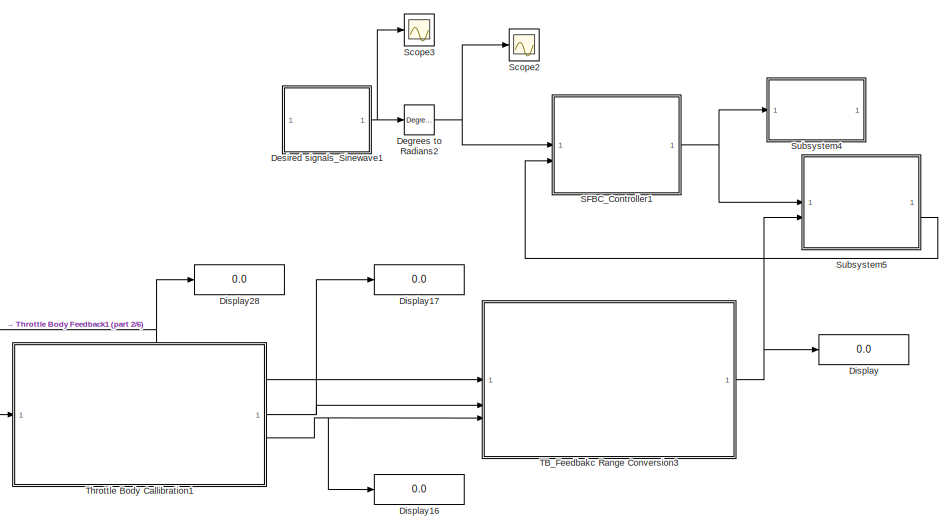
[diagram: root canvas - part 1/6, top center region]
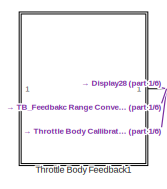
[diagram: root canvas - part 2/6, top left region]
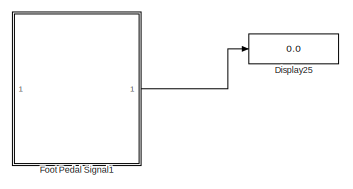
[diagram: root canvas - part 3/6, top left region]
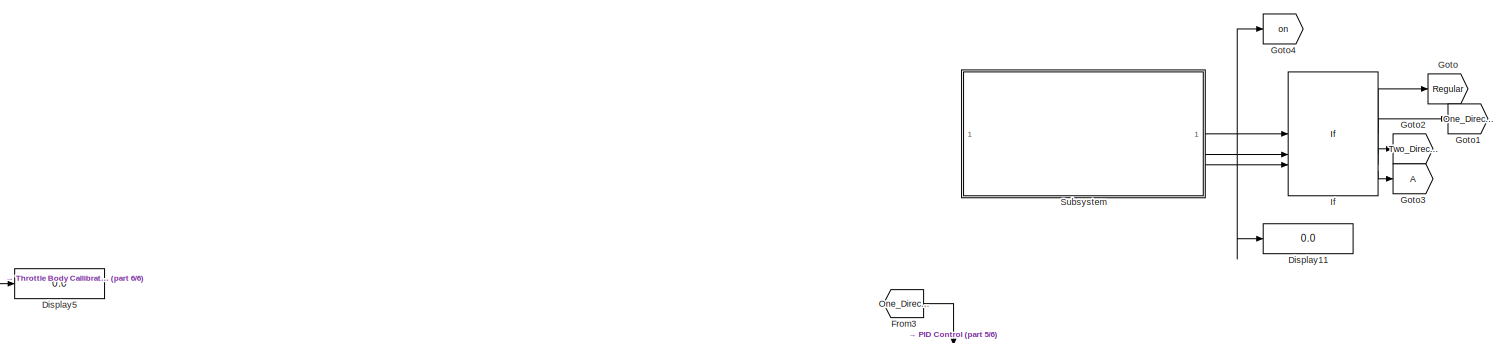
[diagram: root canvas - part 4/6, central region]
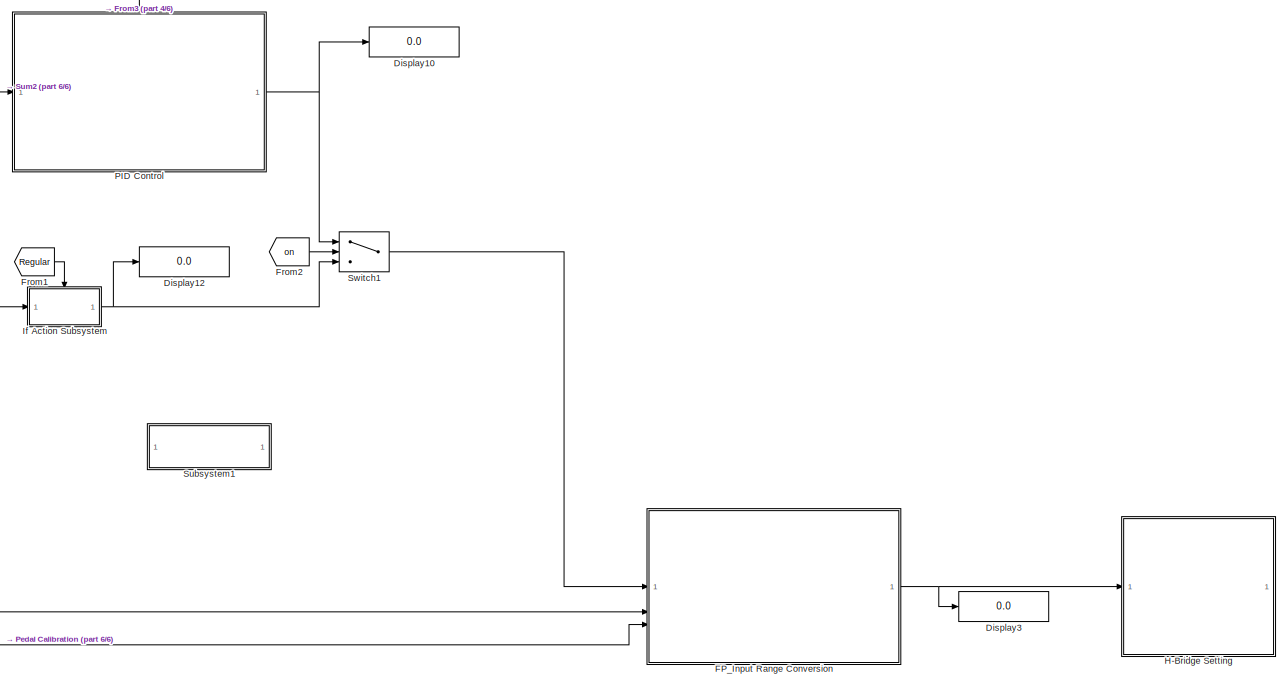
[diagram: root canvas - part 5/6, bottom right region]
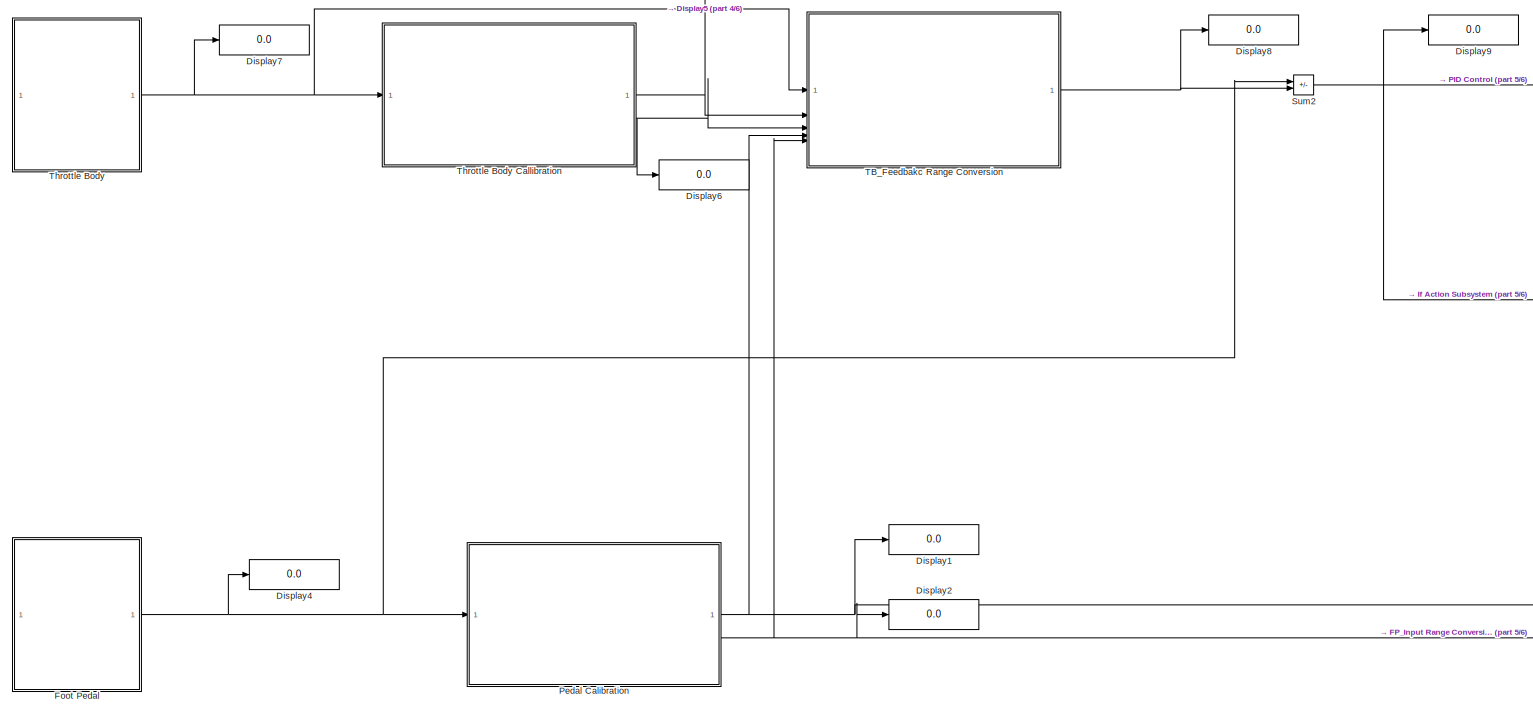
[diagram: root canvas - part 6/6, bottom center region]
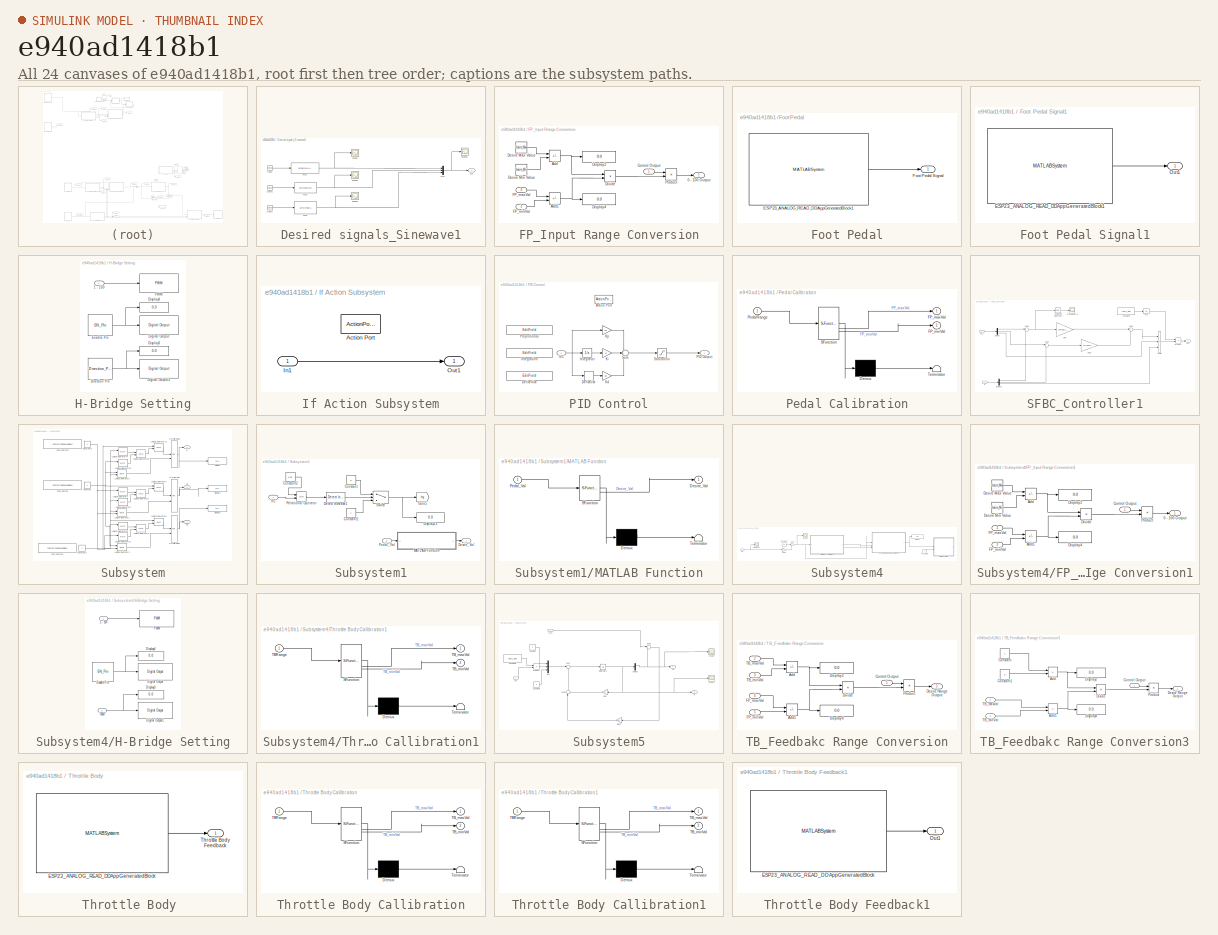
[diagram: thumbnail index - all 24 canvases of the model, root first then tree order]
MODEL slx_e940ad1418b1
KIND model
CONFIG AbsTol = auto
CONFIG EnableMultiTasking = off
CONFIG FixedStep = 0.05
CONFIG MaxStep = auto
CONFIG MinStep = auto
CONFIG RelTol = 1e-3
CONFIG SampleTimeConstraint = Unconstrained
CONFIG SolverName = FixedStepAuto
CONFIG StartTime = 0.0
CONFIG StopTime = inf
BLOCK [Reference] Degrees to Radians2  REF=simulink_extras/Transformations/Degrees to
Radians
  Commented = on
  SourceBlock = simulink_extras/Transformations/Degrees to\nRadians
  SourceType = DegreesToRadians
BLOCK [SubSystem] Desired signals_Sinewave1
  Commented = on
BLOCK [Clock] Desired signals_Sinewave1/Clock
BLOCK [Clock] Desired signals_Sinewave1/Clock1
BLOCK [Clock] Desired signals_Sinewave1/Clock2
BLOCK [Fcn] Desired signals_Sinewave1/Fcn1
  Expr = 10*sin(2*u)+10+7
BLOCK [Fcn] Desired signals_Sinewave1/Fcn2
  Expr = 10*2*cos(2*u)
BLOCK [Fcn] Desired signals_Sinewave1/Fcn3
  Expr = -10*2*2*sin(2*u)
BLOCK [Mux] Desired signals_Sinewave1/Mux
  DisplayOption = bar
  Inputs = 3
BLOCK [Scope] Desired signals_Sinewave1/Scope
  Floating = off
  NumInputPorts = 1
  ScopeSpecificationString = Simulink.scopes.TimeScopeBlockCfg('CurrentConfiguration', extmgr.ConfigurationSet(extmgr.Configuration('Core','General UI',true),extmgr.Configuration('Core','Source UI',true),extmgr.Configuration('Sources','WiredSimulink',true,'DataLoggingVariableName','ScopeData1'),extmgr.Configuration('Visuals','Time Domain',true,'SerializedDisplays',{struct('MinYLimReal','6.53256','MaxYLimReal','29.27408','YLab...<+1487ch>
BLOCK [Scope] Desired signals_Sinewave1/Scope1
  Floating = off
  NumInputPorts = 1
  ScopeSpecificationString = Simulink.scopes.TimeScopeBlockCfg('CurrentConfiguration', extmgr.ConfigurationSet(extmgr.Configuration('Core','General UI',true),extmgr.Configuration('Core','Source UI',true),extmgr.Configuration('Sources','WiredSimulink',true,'DataLoggingVariableName','ScopeData2'),extmgr.Configuration('Visuals','Time Domain',true,'SerializedDisplays',{struct('MinYLimReal','-25.00000','MaxYLimReal','25.00000','YL...<+1490ch>
BLOCK [Scope] Desired signals_Sinewave1/Scope2
  Floating = off
  NumInputPorts = 1
  ScopeSpecificationString = Simulink.scopes.TimeScopeBlockCfg('CurrentConfiguration', extmgr.ConfigurationSet(extmgr.Configuration('Core','General UI',true),extmgr.Configuration('Core','Source UI',true),extmgr.Configuration('Sources','WiredSimulink',true,'DataLoggingVariableName','ScopeData3'),extmgr.Configuration('Visuals','Time Domain',true,'SerializedDisplays',{struct('MinYLimReal','-49.99994','MaxYLimReal','49.99954','YL...<+1491ch>
BLOCK [Scope] Desired signals_Sinewave1/Scope3
  Floating = off
  NumInputPorts = 1
  ScopeSpecificationString = Simulink.scopes.TimeScopeBlockCfg('CurrentConfiguration', extmgr.ConfigurationSet(extmgr.Configuration('Core','General UI',true),extmgr.Configuration('Core','Source UI',true),extmgr.Configuration('Sources','WiredSimulink',true,'DataLoggingVariableName','ScopeData4'),extmgr.Configuration('Visuals','Time Domain',true,'SerializedDisplays',{struct('MinYLimReal','-49.09631','MaxYLimReal','41.86975','YL...<+1472ch>
BLOCK [Outport] Desired signals_Sinewave1/xi_d
BLOCK [Display] Display
  Commented = on
  Decimation = 1
BLOCK [Display] Display1
  Decimation = 2
BLOCK [Display] Display10
  Decimation = 2
BLOCK [Display] Display11
  Decimation = 2
BLOCK [Display] Display12
  Decimation = 2
BLOCK [Display] Display16
  Commented = on
  Decimation = 1
BLOCK [Display] Display17
  Commented = on
  Decimation = 1
BLOCK [Display] Display2
  Decimation = 2
BLOCK [Display] Display25
  Commented = on
  Decimation = 2
BLOCK [Display] Display28
  Commented = on
  Decimation = 2
BLOCK [Display] Display3
  Decimation = 2
BLOCK [Display] Display4
  Decimation = 2
BLOCK [Display] Display5
  Decimation = 2
BLOCK [Display] Display6
  Decimation = 2
BLOCK [Display] Display7
  Decimation = 2
BLOCK [Display] Display8
  Decimation = 2
BLOCK [Display] Display9
  Decimation = 2
BLOCK [SubSystem] FP_Input Range Conversion
BLOCK [Outport] FP_Input Range Conversion/0 - 100 Output
BLOCK [Sum] FP_Input Range Conversion/Add
  IconShape = rectangular
  Inputs = +-
BLOCK [Sum] FP_Input Range Conversion/Add1
  IconShape = rectangular
  Inputs = +-
BLOCK [Inport] FP_Input Range Conversion/Control Output
BLOCK [Constant] FP_Input Range Conversion/Desire Max Value
  Value = Desire_Max
BLOCK [Constant] FP_Input Range Conversion/Desire Min Value
  Value = Desire_Min
BLOCK [Display] FP_Input Range Conversion/Display2
  Decimation = 1
BLOCK [Display] FP_Input Range Conversion/Display4
  Decimation = 1
BLOCK [Product] FP_Input Range Conversion/Divide
  Inputs = */
BLOCK [Inport] FP_Input Range Conversion/FP_maxVal
  Port = 2
BLOCK [Inport] FP_Input Range Conversion/FP_minVal
  Port = 3
BLOCK [Product] FP_Input Range Conversion/Product
BLOCK [SubSystem] Foot Pedal
BLOCK [SubSystem] Foot Pedal Signal1
  Commented = on
BLOCK [MATLABSystem] Foot Pedal Signal1/ESP23_ANALOG_READ_DDAppGeneratedBlock1
  MaskDisplay = color('white');plot([100,100,100,100]*1,[100,100,100,100]*1);plot([100,100,100,100]*0,[100,100,100,100]*0);color('blue');text(38, 92, 'IO Device Builder','horizontalAlignment', 'right');\ncolor('black');text(52,50,' ESP32_ANALOG_READ','horizontalAlignment','center');\nport_label('output',1,'V');  <repeated x4 — deduplicated; at blocks: ESP23_ANALOG_READ_DDAppGeneratedBlock1, ESP23_ANALOG_READ_DDAppGeneratedBlock>
  MaskType = ESP32_ANALOG_READ
  PIN = int8( 34 )
  SampleTime = -1
  System = ESP32_ANALOG_READ
BLOCK [Outport] Foot Pedal Signal1/Out1
BLOCK [MATLABSystem] Foot Pedal/ESP23_ANALOG_READ_DDAppGeneratedBlock1
  MaskType = ESP32_ANALOG_READ
  PIN = int8( 34 )
  SampleTime = -1
  System = ESP32_ANALOG_READ
BLOCK [Outport] Foot Pedal/Foot Pedal Signal
BLOCK [From] From1
  GotoTag = Regular
BLOCK [From] From2
  GotoTag = on
BLOCK [From] From3
  GotoTag = One_Direction
BLOCK [Goto] Goto
  GotoTag = Regular
BLOCK [Goto] Goto1
  GotoTag = One_Direction
BLOCK [Goto] Goto2
  GotoTag = Two_Direction
BLOCK [Goto] Goto3
BLOCK [Goto] Goto4
  GotoTag = on
BLOCK [SubSystem] H-Bridge Setting
BLOCK [Inport] H-Bridge Setting/1 - 100
BLOCK [Reference] H-Bridge Setting/Digital Output  REF=arduinolib/Digital Output
  SourceBlock = arduinolib/Digital Output
  SourceType = Arduino Digital Output
BLOCK [Reference] H-Bridge Setting/Digital Output1  REF=arduinolib/Digital Output
  SourceBlock = arduinolib/Digital Output
  SourceType = Arduino Digital Output
BLOCK [Constant] H-Bridge Setting/Direction Pin
  Value = Direction_Pin
BLOCK [Display] H-Bridge Setting/Display3
  Decimation = 1
BLOCK [Display] H-Bridge Setting/Display4
  Decimation = 1
BLOCK [Constant] H-Bridge Setting/Enable Pin
  Value = EN_Pin
BLOCK [Reference] H-Bridge Setting/PWM  REF=arduinolib/PWM
  SourceBlock = arduinolib/PWM
  SourceType = Arduino PWM
BLOCK [If] If
  ElseIfExpressions = u2 == 1, u3 == 1
  IfExpression = u1 == 1
  NumInputs = 3
BLOCK [SubSystem] If Action Subsystem
  TreatAsAtomicUnit = on
BLOCK [ActionPort] If Action Subsystem/Action Port
  ActionPortLabel = if(u1 == 1)
BLOCK [Inport] If Action Subsystem/In1
BLOCK [Outport] If Action Subsystem/Out1
BLOCK [SubSystem] PID Control
BLOCK [ActionPort] PID Control/Action Port
  ActionPortLabel = elseif(u2 == 1)
BLOCK [EditField] PID Control/Delivertive
  Alignment = Center
  LabelPosition = Hide
  ShowInitialText = on
BLOCK [Derivative] PID Control/Derivative
BLOCK [Inport] PID Control/In1
BLOCK [EditField] PID Control/Integration
  Alignment = Center
  LabelPosition = Hide
  ShowInitialText = on
BLOCK [Integrator] PID Control/Integrator
BLOCK [Gain] PID Control/Kd
  Gain = Kd
BLOCK [Gain] PID Control/Ki
  Gain = Ki
BLOCK [Gain] PID Control/Kp
  Gain = Kp
BLOCK [Outport] PID Control/PID Output
BLOCK [EditField] PID Control/Proprotional
  Alignment = Center
  LabelPosition = Hide
  ShowInitialText = on
BLOCK [Saturate] PID Control/Saturation
  LowerLimit = 0
  UpperLimit = 3
BLOCK [Sum] PID Control/Sum
  Inputs = +++
BLOCK [SubSystem] Pedal Calibration
  ErrorFcn = Stateflow.Translate.translate
  PermitHierarchicalResolution = ExplicitOnly
  SFBlockType = MATLAB Function
  TreatAsAtomicUnit = on
BLOCK [Demux] Pedal Calibration/ Demux 
  Outputs = 1
BLOCK [S-Function] Pedal Calibration/ SFunction 
  EnableBusSupport = on
  FunctionName = sf_sfun
  PortCounts = [1 3]
  SFcnIsStateOwnerBlock = off
  SFunctionDeploymentMode = off
  Tag = Stateflow S-Function 2
BLOCK [Terminator] Pedal Calibration/ Terminator 
BLOCK [Outport] Pedal Calibration/FP_maxVal
BLOCK [Outport] Pedal Calibration/FP_minVal
  Port = 2
BLOCK [Inport] Pedal Calibration/PedalRange
BLOCK [SubSystem] SFBC_Controller1
  Commented = on
BLOCK [Constant] SFBC_Controller1/Constant2
  Value = roa/J_aet
BLOCK [Demux] SFBC_Controller1/Demux
  Outputs = 3
BLOCK [Demux] SFBC_Controller1/Demux1
  Outputs = 3
BLOCK [Fcn] SFBC_Controller1/Fcn
  Expr = 1/u
BLOCK [Gain] SFBC_Controller1/Gain
  Gain = (omga_c)^2
BLOCK [Gain] SFBC_Controller1/Gain1
  Gain = (2*(omga_c))
BLOCK [Product] SFBC_Controller1/Product
  RndMeth = Zero
BLOCK [Reference] SFBC_Controller1/Radians to Degrees4  REF=simulink_extras/Transformations/Radians
to Degrees
  NameLocation = top
  SourceBlock = simulink_extras/Transformations/Radians\nto Degrees
  SourceType = RadiansToDegrees
BLOCK [Sum] SFBC_Controller1/Sum1
  Inputs = |++
BLOCK [Sum] SFBC_Controller1/Sum2
  IconShape = rectangular
  Inputs = |++-
BLOCK [Sum] SFBC_Controller1/Sum3
  Inputs = |+-
BLOCK [Sum] SFBC_Controller1/Sum4
  Inputs = |+-
BLOCK [Scope] SFBC_Controller1/Tracking erro
  Floating = off
  NumInputPorts = 1
  ScopeSpecificationString = Simulink.scopes.TimeScopeBlockCfg('CurrentConfiguration', extmgr.ConfigurationSet(extmgr.Configuration('Core','General UI',true),extmgr.Configuration('Core','Source UI',true),extmgr.Configuration('Sources','WiredSimulink',true,'DataLogging',true,'DataLoggingVariableName','Scope_e_ADRC','DataLoggingSaveFormat','StructureWithTime','DataLoggingDecimation','1','DataLoggingDecimateData',true),extmgr.Co...<+1847ch>
BLOCK [Outport] SFBC_Controller1/U (t)
BLOCK [Inport] SFBC_Controller1/Xd_i
BLOCK [Inport] SFBC_Controller1/Xi^
  Port = 2
BLOCK [Scope] Scope2
  Commented = on
  Floating = off
  NumInputPorts = 1
  ScopeSpecificationString = Simulink.scopes.TimeScopeBlockCfg('CurrentConfiguration', extmgr.ConfigurationSet(extmgr.Configuration('Core','General UI',true),extmgr.Configuration('Core','Source UI',true),extmgr.Configuration('Sources','WiredSimulink',true,'DataLoggingVariableName','ScopeData3'),extmgr.Configuration('Visuals','Time Domain',true,'SerializedDisplays',{struct('MinYLimReal','-0.76425','MaxYLimReal','0.7293','YLabe...<+1590ch>
BLOCK [Scope] Scope3
  Commented = on
  Floating = off
  NumInputPorts = 1
  ScopeSpecificationString = Simulink.scopes.TimeScopeBlockCfg('CurrentConfiguration', extmgr.ConfigurationSet(extmgr.Configuration('Core','General UI',true),extmgr.Configuration('Core','Source UI',true),extmgr.Configuration('Sources','WiredSimulink',true,'DataLoggingVariableName','ScopeData4'),extmgr.Configuration('Visuals','Time Domain',true,'SerializedDisplays',{struct('MinYLimReal','-49.81354','MaxYLimReal','48.32485','YL...<+1571ch>
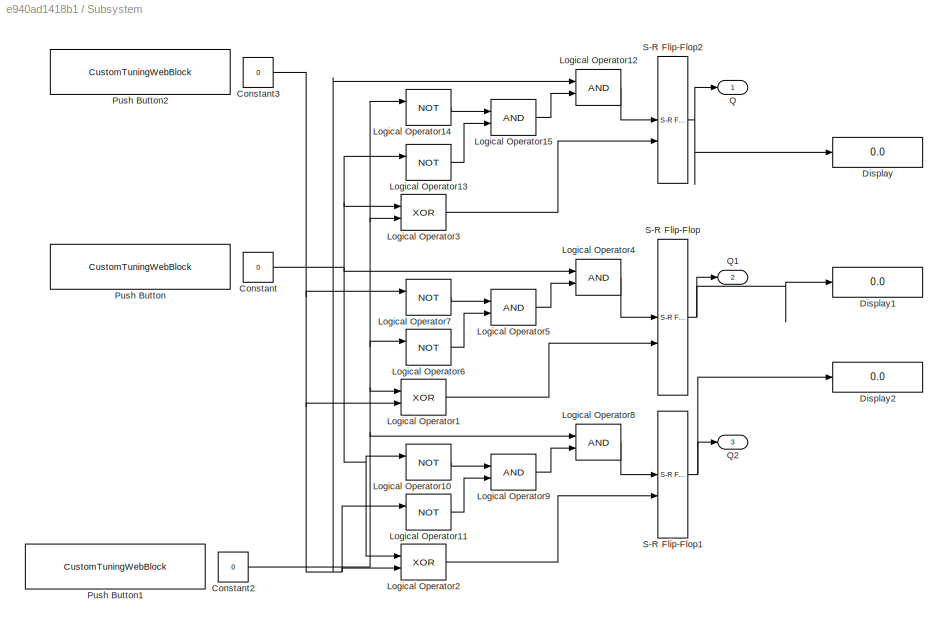
BLOCK [SubSystem] Subsystem
BLOCK [Constant] Subsystem/Constant
  Value = 0
BLOCK [Constant] Subsystem/Constant2
  Value = 0
BLOCK [Constant] Subsystem/Constant3
  Value = 0
BLOCK [Display] Subsystem/Display
  Decimation = 1
BLOCK [Display] Subsystem/Display1
  Decimation = 1
BLOCK [Display] Subsystem/Display2
  Decimation = 1
BLOCK [Logic] Subsystem/Logical Operator1
  AllPortsSameDT = off
  IconShape = distinctive
  Operator = XOR
  OutDataTypeStr = boolean
BLOCK [Logic] Subsystem/Logical Operator10
  AllPortsSameDT = off
  IconShape = distinctive
  Operator = NOT
  OutDataTypeStr = boolean
BLOCK [Logic] Subsystem/Logical Operator11
  AllPortsSameDT = off
  IconShape = distinctive
  Operator = NOT
  OutDataTypeStr = boolean
BLOCK [Logic] Subsystem/Logical Operator12
  AllPortsSameDT = off
  IconShape = distinctive
  OutDataTypeStr = boolean
BLOCK [Logic] Subsystem/Logical Operator13
  AllPortsSameDT = off
  IconShape = distinctive
  Operator = NOT
  OutDataTypeStr = boolean
BLOCK [Logic] Subsystem/Logical Operator14
  AllPortsSameDT = off
  IconShape = distinctive
  Operator = NOT
  OutDataTypeStr = boolean
BLOCK [Logic] Subsystem/Logical Operator15
  AllPortsSameDT = off
  IconShape = distinctive
  OutDataTypeStr = boolean
BLOCK [Logic] Subsystem/Logical Operator2
  AllPortsSameDT = off
  IconShape = distinctive
  Operator = XOR
  OutDataTypeStr = boolean
BLOCK [Logic] Subsystem/Logical Operator3
  AllPortsSameDT = off
  IconShape = distinctive
  Operator = XOR
  OutDataTypeStr = boolean
BLOCK [Logic] Subsystem/Logical Operator4
  AllPortsSameDT = off
  IconShape = distinctive
  OutDataTypeStr = boolean
BLOCK [Logic] Subsystem/Logical Operator5
  AllPortsSameDT = off
  IconShape = distinctive
  OutDataTypeStr = boolean
BLOCK [Logic] Subsystem/Logical Operator6
  AllPortsSameDT = off
  IconShape = distinctive
  Operator = NOT
  OutDataTypeStr = boolean
BLOCK [Logic] Subsystem/Logical Operator7
  AllPortsSameDT = off
  IconShape = distinctive
  Operator = NOT
  OutDataTypeStr = boolean
BLOCK [Logic] Subsystem/Logical Operator8
  AllPortsSameDT = off
  IconShape = distinctive
  OutDataTypeStr = boolean
BLOCK [Logic] Subsystem/Logical Operator9
  AllPortsSameDT = off
  IconShape = distinctive
  OutDataTypeStr = boolean
BLOCK [CustomTuningWebBlock] Subsystem/Push Button
  Configuration = {"components":[{"name":"BackgroundImageComponent","settings":{"image":{"size":[0,0],"src":"default","srcOrientation":"horizontal"},"position":[0,0,1,1],"scaleMode":"0"}},{"name":"ButtonStateComponent","settings":{"buttonType":"momentary","clickFcn":"","image":{"size":[180,45],"srcOrientation":"Right"},"latched":false,"offValue":null,"onValue":"1","position":[0,0,1,1],"pressDelay":"500","pressFcn":...<+16103ch>  <repeated x3 — deduplicated; at blocks: Push Button, Push Button1, Push Button2>
  LabelPosition = Hide
  ShowInitialText = on
BLOCK [CustomTuningWebBlock] Subsystem/Push Button1
  LabelPosition = Hide
  ShowInitialText = on
BLOCK [CustomTuningWebBlock] Subsystem/Push Button2
  LabelPosition = Hide
  ShowInitialText = on
BLOCK [Outport] Subsystem/Q
BLOCK [Outport] Subsystem/Q1
  Port = 2
BLOCK [Outport] Subsystem/Q2
  Port = 3
BLOCK [Reference] Subsystem/S-R Flip-Flop  REF=simulink_extras/Flip Flops/S-R
Flip-Flop
  SourceBlock = simulink_extras/Flip Flops/S-R\nFlip-Flop
  SourceType = SRFlipFlop
BLOCK [Reference] Subsystem/S-R Flip-Flop1  REF=simulink_extras/Flip Flops/S-R
Flip-Flop
  SourceBlock = simulink_extras/Flip Flops/S-R\nFlip-Flop
  SourceType = SRFlipFlop
BLOCK [Reference] Subsystem/S-R Flip-Flop2  REF=simulink_extras/Flip Flops/S-R
Flip-Flop
  SourceBlock = simulink_extras/Flip Flops/S-R\nFlip-Flop
  SourceType = SRFlipFlop
BLOCK [SubSystem] Subsystem1
  Commented = on
BLOCK [Constant] Subsystem1/Constant
  Value = 0
BLOCK [Constant] Subsystem1/Constant1
BLOCK [Constant] Subsystem1/Constant2
  Value = 0.02
BLOCK [Outport] Subsystem1/Desire_Val
BLOCK [Reference] Subsystem1/Detect Increase1  REF=simulink/Logic and Bit
Operations/Detect
Increase
  SourceBlock = simulink/Logic and Bit\nOperations/Detect\nIncrease
  SourceType = Detect Increase
BLOCK [Display] Subsystem1/Display13
  Decimation = 2
BLOCK [Goto] Subsystem1/Goto5
  GotoTag = try
BLOCK [Inport] Subsystem1/In1
BLOCK [SubSystem] Subsystem1/MATLAB Function
  ErrorFcn = Stateflow.Translate.translate
  PermitHierarchicalResolution = ExplicitOnly
  SFBlockType = MATLAB Function
  TreatAsAtomicUnit = on
BLOCK [Demux] Subsystem1/MATLAB Function/ Demux 
  Outputs = 1
BLOCK [S-Function] Subsystem1/MATLAB Function/ SFunction 
  EnableBusSupport = on
  FunctionName = sf_sfun
  PortCounts = [1 2]
  SFcnIsStateOwnerBlock = off
  SFunctionDeploymentMode = off
  Tag = Stateflow S-Function 3
BLOCK [Terminator] Subsystem1/MATLAB Function/ Terminator 
BLOCK [Outport] Subsystem1/MATLAB Function/Desire_Val
BLOCK [Inport] Subsystem1/MATLAB Function/Pedal_Val
BLOCK [Inport] Subsystem1/Pedal_Val
  Port = 2
BLOCK [RelationalOperator] Subsystem1/Relational Operator
  InputSameDT = off
  OutDataTypeStr = boolean
  RndMeth = Simplest
BLOCK [Switch] Subsystem1/Switch
  Criteria = u2 ~= 0
  InputSameDT = off
  SaturateOnIntegerOverflow = off
  Threshold = 1
BLOCK [SubSystem] Subsystem4
  Commented = on
BLOCK [Constant] Subsystem4/Constant
  Value = 0.3
BLOCK [Constant] Subsystem4/Constant3
  Value = 0
BLOCK [Display] Subsystem4/Display
  Decimation = 1
BLOCK [SubSystem] Subsystem4/FP_Input Range Conversion1
BLOCK [Outport] Subsystem4/FP_Input Range Conversion1/0 - 100 Output
BLOCK [Sum] Subsystem4/FP_Input Range Conversion1/Add
  IconShape = rectangular
  Inputs = +-
BLOCK [Sum] Subsystem4/FP_Input Range Conversion1/Add1
  IconShape = rectangular
  Inputs = +-
BLOCK [Inport] Subsystem4/FP_Input Range Conversion1/Control Output
BLOCK [Constant] Subsystem4/FP_Input Range Conversion1/Desire Max Value
  Value = Desire_Max
BLOCK [Constant] Subsystem4/FP_Input Range Conversion1/Desire Min Value
  Value = Desire_Min
BLOCK [Display] Subsystem4/FP_Input Range Conversion1/Display2
  Decimation = 1
BLOCK [Display] Subsystem4/FP_Input Range Conversion1/Display4
  Decimation = 1
BLOCK [Product] Subsystem4/FP_Input Range Conversion1/Divide
  Inputs = */
BLOCK [Inport] Subsystem4/FP_Input Range Conversion1/FP_maxVal
  Port = 2
BLOCK [Inport] Subsystem4/FP_Input Range Conversion1/FP_minVal
  Port = 3
BLOCK [Product] Subsystem4/FP_Input Range Conversion1/Product
BLOCK [Gain] Subsystem4/Gain1
  Gain = 0.7
BLOCK [SubSystem] Subsystem4/H-Bridge Setting
BLOCK [Inport] Subsystem4/H-Bridge Setting/1 - 100
BLOCK [Reference] Subsystem4/H-Bridge Setting/Digital Output  REF=arduinolib/Digital Output
  SourceBlock = arduinolib/Digital Output
  SourceType = Arduino Digital Output
BLOCK [Reference] Subsystem4/H-Bridge Setting/Digital Output1  REF=arduinolib/Digital Output
  SourceBlock = arduinolib/Digital Output
  SourceType = Arduino Digital Output
BLOCK [Display] Subsystem4/H-Bridge Setting/Display3
  Decimation = 1
BLOCK [Display] Subsystem4/H-Bridge Setting/Display4
  Decimation = 1
BLOCK [Constant] Subsystem4/H-Bridge Setting/Enable Pin
  Value = EN_Pin
BLOCK [Inport] Subsystem4/H-Bridge Setting/Input
  Port = 2
BLOCK [Reference] Subsystem4/H-Bridge Setting/PWM  REF=arduinolib/PWM
  SourceBlock = arduinolib/PWM
  SourceType = Arduino PWM
BLOCK [Scope] Subsystem4/SIne Input
  Floating = off
  NumInputPorts = 1
  ScopeSpecificationString = Simulink.scopes.TimeScopeBlockCfg('CurrentConfiguration', extmgr.ConfigurationSet(extmgr.Configuration('Core','General UI',true),extmgr.Configuration('Core','Source UI',true),extmgr.Configuration('Sources','WiredSimulink',true,'DataLoggingVariableName','ScopeData1'),extmgr.Configuration('Visuals','Time Domain',true,'SerializedDisplays',{struct('MinYLimReal','-4.6111','MaxYLimReal','3.05846','YLabe...<+1537ch>
BLOCK [Scope] Subsystem4/Scope
  Floating = off
  NumInputPorts = 1
  ScopeSpecificationString = Simulink.scopes.TimeScopeBlockCfg('CurrentConfiguration', extmgr.ConfigurationSet(extmgr.Configuration('Core','General UI',true),extmgr.Configuration('Core','Source UI',true),extmgr.Configuration('Sources','WiredSimulink',true,'DataLoggingVariableName','ScopeData2'),extmgr.Configuration('Visuals','Time Domain',true,'SerializedDisplays',{struct('MinYLimReal','-2.88295','MaxYLimReal','2.38779','YLab...<+1451ch>
BLOCK [Sum] Subsystem4/Sum
  Inputs = |++
BLOCK [SubSystem] Subsystem4/Throttle Body Callibration1
  ErrorFcn = Stateflow.Translate.translate
  PermitHierarchicalResolution = ExplicitOnly
  SFBlockType = MATLAB Function
  TreatAsAtomicUnit = on
BLOCK [Demux] Subsystem4/Throttle Body Callibration1/ Demux 
  Outputs = 1
BLOCK [S-Function] Subsystem4/Throttle Body Callibration1/ SFunction 
  EnableBusSupport = on
  FunctionName = sf_sfun
  PortCounts = [1 3]
  SFcnIsStateOwnerBlock = off
  SFunctionDeploymentMode = off
  Tag = Stateflow S-Function 7
BLOCK [Terminator] Subsystem4/Throttle Body Callibration1/ Terminator 
BLOCK [Inport] Subsystem4/Throttle Body Callibration1/TBRange
BLOCK [Outport] Subsystem4/Throttle Body Callibration1/TB_maxVal
BLOCK [Outport] Subsystem4/Throttle Body Callibration1/TB_minVal
  Port = 2
BLOCK [Inport] Subsystem4/U(t)
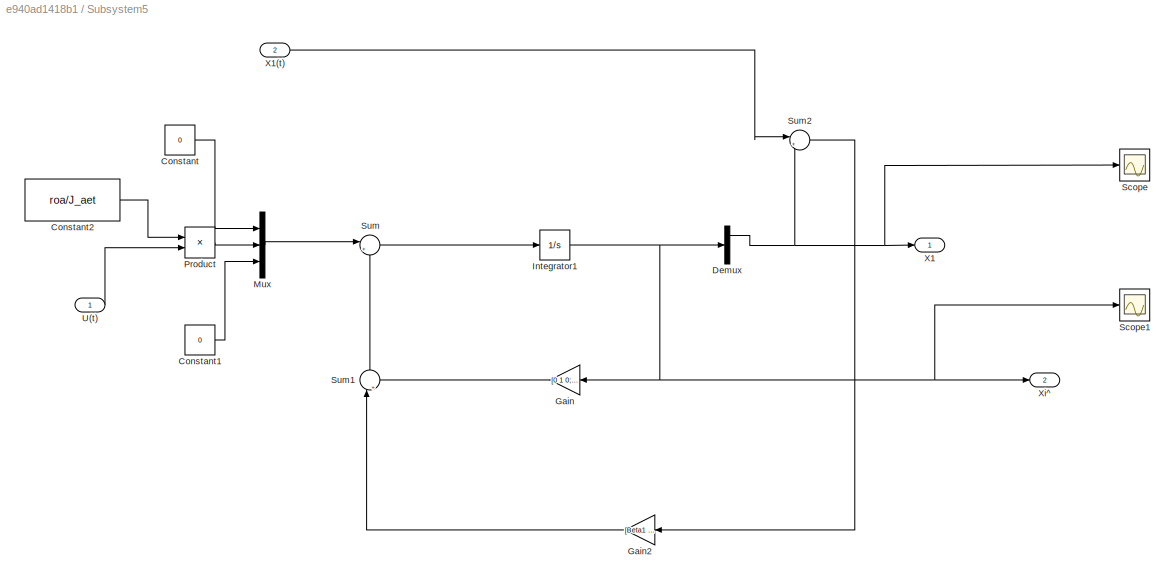
BLOCK [SubSystem] Subsystem5
  Commented = on
  NameLocation = top
BLOCK [Constant] Subsystem5/Constant
  Value = 0
BLOCK [Constant] Subsystem5/Constant1
  Value = 0
BLOCK [Constant] Subsystem5/Constant2
  Value = roa/J_aet
BLOCK [Demux] Subsystem5/Demux
  Outputs = 3
BLOCK [Gain] Subsystem5/Gain
  Gain = [0 1 0;0 0 1;0 0 0]
  Multiplication = Matrix(K*u)
  NameLocation = top
BLOCK [Gain] Subsystem5/Gain2
  Gain = [Beta1 Beta2 Beta3]'
  NameLocation = top
BLOCK [Integrator] Subsystem5/Integrator1
  InitialCondition = [12*pi/180 0 0]'
BLOCK [Mux] Subsystem5/Mux
  DisplayOption = bar
  Inputs = 3
BLOCK [Product] Subsystem5/Product
  RndMeth = Zero
BLOCK [Scope] Subsystem5/Scope
  Floating = off
  NumInputPorts = 1
  ScopeSpecificationString = C++SS(StrPVP('Location','[188, 390, 512, 629]'),StrPVP('Open','off'),MxPVP('AxesTitles',54,'struct(''axes1'',''%<SignalLabel>'')'),StrPVP('SaveName','ScopeData3'),StrPVP('DataFormat','StructureWithTime'),StrPVP('BlockParamSampleTime','0'),StrPVP('LimitDataPoints','on'),StrPVP('Decimation','1'),StrPVP('BlockParamSampleInput','off'))
BLOCK [Scope] Subsystem5/Scope1
  Floating = off
  NumInputPorts = 1
  ScopeSpecificationString = C++SS(StrPVP('Location','[188, 390, 512, 629]'),StrPVP('Open','off'),MxPVP('AxesTitles',54,'struct(''axes1'',''%<SignalLabel>'')'),MxPVP('ScopeGraphics',57,'struct(''FigureColor'',''[0.5 0.5 0.5]'',''AxesColor'',''[0 0 0]'',''AxesTickColor'',''[1 1 1]'',''LineColors'',''[1 1 0;1 0 1;0 1 1;1 0 0;0 1 0;0 0 1]'',''LineStyles'',''-|-|-|-|-|-'',''LineWidths'',''[0.5 0.5 0.5 0.5 0.5 0.5]'',''MarkerStyle...<+243ch>
BLOCK [Sum] Subsystem5/Sum
  Inputs = |++
BLOCK [Sum] Subsystem5/Sum1
  Inputs = |++
  NameLocation = right
BLOCK [Sum] Subsystem5/Sum2
  Inputs = |+-
BLOCK [Inport] Subsystem5/U(t)
BLOCK [Outport] Subsystem5/X1
BLOCK [Inport] Subsystem5/X1(t)
  Port = 2
BLOCK [Outport] Subsystem5/Xi^
  Port = 2
BLOCK [Sum] Sum2
  IconShape = rectangular
  Inputs = +-
BLOCK [Switch] Switch1
  Criteria = u2 ~= 0
  InputSameDT = off
  SaturateOnIntegerOverflow = off
  Threshold = 1
BLOCK [SubSystem] TB_Feedbakc Range Conversion
BLOCK [Outport] TB_Feedbakc Range Conversion/ Desire Range Output
BLOCK [Sum] TB_Feedbakc Range Conversion/Add
  IconShape = rectangular
  Inputs = +-
BLOCK [Sum] TB_Feedbakc Range Conversion/Add1
  IconShape = rectangular
  Inputs = +-
BLOCK [Inport] TB_Feedbakc Range Conversion/Control Output
BLOCK [Display] TB_Feedbakc Range Conversion/Display2
  Decimation = 1
BLOCK [Display] TB_Feedbakc Range Conversion/Display4
  Decimation = 1
BLOCK [Product] TB_Feedbakc Range Conversion/Divide
  Inputs = */
BLOCK [Inport] TB_Feedbakc Range Conversion/FP_maxVal
  Port = 4
BLOCK [Inport] TB_Feedbakc Range Conversion/FP_minVal
  Port = 5
BLOCK [Product] TB_Feedbakc Range Conversion/Product
BLOCK [Inport] TB_Feedbakc Range Conversion/TB_maxVal
  Port = 2
BLOCK [Inport] TB_Feedbakc Range Conversion/TB_minVal
  Port = 3
BLOCK [SubSystem] TB_Feedbakc Range Conversion3
  Commented = on
BLOCK [Outport] TB_Feedbakc Range Conversion3/ Desire Range Output
BLOCK [Sum] TB_Feedbakc Range Conversion3/Add
  IconShape = rectangular
  Inputs = +-
BLOCK [Sum] TB_Feedbakc Range Conversion3/Add1
  IconShape = rectangular
  Inputs = +-
BLOCK [Constant] TB_Feedbakc Range Conversion3/Constant
BLOCK [Constant] TB_Feedbakc Range Conversion3/Constant1
  Value = 0
BLOCK [Inport] TB_Feedbakc Range Conversion3/Control Output
BLOCK [Display] TB_Feedbakc Range Conversion3/Display2
  Decimation = 1
BLOCK [Display] TB_Feedbakc Range Conversion3/Display4
  Decimation = 1
BLOCK [Product] TB_Feedbakc Range Conversion3/Divide
  Inputs = */
BLOCK [Product] TB_Feedbakc Range Conversion3/Product
BLOCK [Inport] TB_Feedbakc Range Conversion3/TB_maxVal
  Port = 2
BLOCK [Inport] TB_Feedbakc Range Conversion3/TB_minVal
  Port = 3
BLOCK [SubSystem] Throttle Body 
BLOCK [MATLABSystem] Throttle Body /ESP23_ANALOG_READ_DDAppGeneratedBlock
  MaskType = ESP32_ANALOG_READ
  PIN = int8( 35 )
  SampleTime = -1
  System = ESP32_ANALOG_READ
BLOCK [Outport] Throttle Body /Throttle Body Feedback
BLOCK [SubSystem] Throttle Body Callibration
  ErrorFcn = Stateflow.Translate.translate
  PermitHierarchicalResolution = ExplicitOnly
  SFBlockType = MATLAB Function
  TreatAsAtomicUnit = on
BLOCK [Demux] Throttle Body Callibration/ Demux 
  Outputs = 1
BLOCK [S-Function] Throttle Body Callibration/ SFunction 
  EnableBusSupport = on
  FunctionName = sf_sfun
  PortCounts = [1 3]
  SFcnIsStateOwnerBlock = off
  SFunctionDeploymentMode = off
  Tag = Stateflow S-Function 1
BLOCK [Terminator] Throttle Body Callibration/ Terminator 
BLOCK [Inport] Throttle Body Callibration/TBRange
BLOCK [Outport] Throttle Body Callibration/TB_maxVal
BLOCK [Outport] Throttle Body Callibration/TB_minVal
  Port = 2
BLOCK [SubSystem] Throttle Body Callibration1
  Commented = on
  ErrorFcn = Stateflow.Translate.translate
  PermitHierarchicalResolution = ExplicitOnly
  SFBlockType = MATLAB Function
  TreatAsAtomicUnit = on
BLOCK [Demux] Throttle Body Callibration1/ Demux 
  Outputs = 1
BLOCK [S-Function] Throttle Body Callibration1/ SFunction 
  EnableBusSupport = on
  FunctionName = sf_sfun
  PortCounts = [1 3]
  SFcnIsStateOwnerBlock = off
  SFunctionDeploymentMode = off
  Tag = Stateflow S-Function 4
BLOCK [Terminator] Throttle Body Callibration1/ Terminator 
BLOCK [Inport] Throttle Body Callibration1/TBRange
BLOCK [Outport] Throttle Body Callibration1/TB_maxVal
BLOCK [Outport] Throttle Body Callibration1/TB_minVal
  Port = 2
BLOCK [SubSystem] Throttle Body Feedback1
  Commented = on
BLOCK [MATLABSystem] Throttle Body Feedback1/ESP23_ANALOG_READ_DDAppGeneratedBlock
  MaskType = ESP32_ANALOG_READ
  PIN = int8( 35 )
  SampleTime = -1
  System = ESP32_ANALOG_READ
BLOCK [Outport] Throttle Body Feedback1/Out1
NET Degrees to Radians2:1 -> SFBC_Controller1:1, Scope2:1
LINE Desired signals_Sinewave1/Clock1:1 -> Desired signals_Sinewave1/Fcn2:1
LINE Desired signals_Sinewave1/Clock2:1 -> Desired signals_Sinewave1/Fcn3:1
LINE Desired signals_Sinewave1/Clock:1 -> Desired signals_Sinewave1/Fcn1:1
NET Desired signals_Sinewave1/Fcn1:1 -> Desired signals_Sinewave1/Mux:1, Desired signals_Sinewave1/Scope:1
NET Desired signals_Sinewave1/Fcn2:1 -> Desired signals_Sinewave1/Mux:2, Desired signals_Sinewave1/Scope1:1
NET Desired signals_Sinewave1/Fcn3:1 -> Desired signals_Sinewave1/Mux:3, Desired signals_Sinewave1/Scope2:1
NET Desired signals_Sinewave1/Mux:1 -> Desired signals_Sinewave1/Scope3:1, Desired signals_Sinewave1/xi_d:1
NET Desired signals_Sinewave1:1 -> Degrees to Radians2:1, Scope3:1
NET FP_Input Range Conversion/Add1:1 -> FP_Input Range Conversion/Display4:1, FP_Input Range Conversion/Divide:2
NET FP_Input Range Conversion/Add:1 -> FP_Input Range Conversion/Display2:1, FP_Input Range Conversion/Divide:1
LINE FP_Input Range Conversion/Control Output:1 -> FP_Input Range Conversion/Product:1
LINE FP_Input Range Conversion/Desire Max Value:1 -> FP_Input Range Conversion/Add:1
LINE FP_Input Range Conversion/Desire Min Value:1 -> FP_Input Range Conversion/Add:2
LINE FP_Input Range Conversion/Divide:1 -> FP_Input Range Conversion/Product:2
LINE FP_Input Range Conversion/FP_maxVal:1 -> FP_Input Range Conversion/Add1:1
LINE FP_Input Range Conversion/FP_minVal:1 -> FP_Input Range Conversion/Add1:2
LINE FP_Input Range Conversion/Product:1 -> FP_Input Range Conversion/0 - 100 Output:1
NET FP_Input Range Conversion:1 -> Display3:1, H-Bridge Setting:1
LINE Foot Pedal Signal1/ESP23_ANALOG_READ_DDAppGeneratedBlock1:1 -> Foot Pedal Signal1/Out1:1
LINE Foot Pedal Signal1:1 -> Display25:1
LINE Foot Pedal/ESP23_ANALOG_READ_DDAppGeneratedBlock1:1 -> Foot Pedal/Foot Pedal Signal:1
NET Foot Pedal:1 -> Display4:1, Pedal Calibration:1, Sum2:1
LINE From1:1 -> If Action Subsystem:ifaction
LINE From2:1 -> Switch1:2
LINE From3:1 -> PID Control:ifaction
LINE H-Bridge Setting/1 - 100:1 -> H-Bridge Setting/PWM:1
NET H-Bridge Setting/Direction Pin:1 -> H-Bridge Setting/Digital Output1:1, H-Bridge Setting/Display3:1
NET H-Bridge Setting/Enable Pin:1 -> H-Bridge Setting/Digital Output:1, H-Bridge Setting/Display4:1
LINE If Action Subsystem/In1:1 -> If Action Subsystem/Out1:1
NET If Action Subsystem:1 -> Display12:1, Switch1:3
LINE If:1 -> Goto:1
LINE If:2 -> Goto1:1
LINE If:3 -> Goto2:1
LINE If:4 -> Goto3:1
LINE PID Control/Derivative:1 -> PID Control/Kd:1
NET PID Control/In1:1 -> PID Control/Derivative:1, PID Control/Integrator:1, PID Control/Kp:1
LINE PID Control/Integrator:1 -> PID Control/Ki:1
LINE PID Control/Kd:1 -> PID Control/Sum:3
LINE PID Control/Ki:1 -> PID Control/Sum:2
LINE PID Control/Kp:1 -> PID Control/Sum:1
LINE PID Control/Saturation:1 -> PID Control/PID Output:1
LINE PID Control/Sum:1 -> PID Control/Saturation:1
NET PID Control:1 -> Display10:1, Switch1:1
NET Pedal Calibration:1 -> Display1:1, FP_Input Range Conversion:2, TB_Feedbakc Range Conversion:4
NET Pedal Calibration:2 -> Display2:1, FP_Input Range Conversion:3, TB_Feedbakc Range Conversion:5
LINE SFBC_Controller1/Constant2:1 -> SFBC_Controller1/Fcn:1
LINE SFBC_Controller1/Demux1:1 -> SFBC_Controller1/Sum3:2
LINE SFBC_Controller1/Demux1:2 -> SFBC_Controller1/Sum4:2
LINE SFBC_Controller1/Demux1:3 -> SFBC_Controller1/Sum2:3
LINE SFBC_Controller1/Demux:1 -> SFBC_Controller1/Sum3:1
LINE SFBC_Controller1/Demux:2 -> SFBC_Controller1/Sum4:1
LINE SFBC_Controller1/Demux:3 -> SFBC_Controller1/Sum2:2
LINE SFBC_Controller1/Fcn:1 -> SFBC_Controller1/Product:1
LINE SFBC_Controller1/Gain1:1 -> SFBC_Controller1/Sum1:2
LINE SFBC_Controller1/Gain:1 -> SFBC_Controller1/Sum1:1
LINE SFBC_Controller1/Product:1 -> SFBC_Controller1/U (t):1
LINE SFBC_Controller1/Radians to Degrees4:1 -> SFBC_Controller1/Tracking erro:1
LINE SFBC_Controller1/Sum1:1 -> SFBC_Controller1/Sum2:1
LINE SFBC_Controller1/Sum2:1 -> SFBC_Controller1/Product:2
NET SFBC_Controller1/Sum3:1 -> SFBC_Controller1/Gain:1, SFBC_Controller1/Radians to Degrees4:1
LINE SFBC_Controller1/Sum4:1 -> SFBC_Controller1/Gain1:1
LINE SFBC_Controller1/Xd_i:1 -> SFBC_Controller1/Demux:1
LINE SFBC_Controller1/Xi^:1 -> SFBC_Controller1/Demux1:1
NET SFBC_Controller1:1 -> Subsystem4:1, Subsystem5:1
NET Subsystem/Constant2:1 -> Subsystem/Logical Operator14:1, Subsystem/Logical Operator1:1, Subsystem/Logical Operator3:2, Subsystem/Logical Operator6:1, Subsystem/Logical Operator8:1
NET Subsystem/Constant3:1 -> Subsystem/Logical Operator11:1, Subsystem/Logical Operator12:1, Subsystem/Logical Operator1:2, Subsystem/Logical Operator2:2, Subsystem/Logical Operator7:1
NET Subsystem/Constant:1 -> Subsystem/Logical Operator10:1, Subsystem/Logical Operator13:1, Subsystem/Logical Operator2:1, Subsystem/Logical Operator3:1, Subsystem/Logical Operator4:1
LINE Subsystem/Logical Operator10:1 -> Subsystem/Logical Operator9:1
LINE Subsystem/Logical Operator11:1 -> Subsystem/Logical Operator9:2
LINE Subsystem/Logical Operator12:1 -> Subsystem/S-R Flip-Flop2:1
LINE Subsystem/Logical Operator13:1 -> Subsystem/Logical Operator15:2
LINE Subsystem/Logical Operator14:1 -> Subsystem/Logical Operator15:1
LINE Subsystem/Logical Operator15:1 -> Subsystem/Logical Operator12:2
LINE Subsystem/Logical Operator1:1 -> Subsystem/S-R Flip-Flop:2
LINE Subsystem/Logical Operator2:1 -> Subsystem/S-R Flip-Flop1:2
LINE Subsystem/Logical Operator3:1 -> Subsystem/S-R Flip-Flop2:2
LINE Subsystem/Logical Operator4:1 -> Subsystem/S-R Flip-Flop:1
LINE Subsystem/Logical Operator5:1 -> Subsystem/Logical Operator4:2
LINE Subsystem/Logical Operator6:1 -> Subsystem/Logical Operator5:2
LINE Subsystem/Logical Operator7:1 -> Subsystem/Logical Operator5:1
LINE Subsystem/Logical Operator8:1 -> Subsystem/S-R Flip-Flop1:1
LINE Subsystem/Logical Operator9:1 -> Subsystem/Logical Operator8:2
NET Subsystem/S-R Flip-Flop1:1 -> Subsystem/Display2:1, Subsystem/Q2:1
NET Subsystem/S-R Flip-Flop2:1 -> Subsystem/Display:1, Subsystem/Q:1
NET Subsystem/S-R Flip-Flop:1 -> Subsystem/Display1:1, Subsystem/Q1:1
LINE Subsystem1/Constant1:1 -> Subsystem1/Switch:3
LINE Subsystem1/Constant2:1 -> Subsystem1/Relational Operator:1
LINE Subsystem1/Constant:1 -> Subsystem1/Switch:1
LINE Subsystem1/Detect Increase1:1 -> Subsystem1/Switch:2
LINE Subsystem1/In1:1 -> Subsystem1/Relational Operator:2
LINE Subsystem1/MATLAB Function:1 -> Subsystem1/Desire_Val:1
LINE Subsystem1/Pedal_Val:1 -> Subsystem1/MATLAB Function:1
LINE Subsystem1/Relational Operator:1 -> Subsystem1/Detect Increase1:1
NET Subsystem1/Switch:1 -> Subsystem1/Display13:1, Subsystem1/Goto5:1
LINE Subsystem4/Constant3:1 -> Subsystem4/H-Bridge Setting:2
LINE Subsystem4/Constant:1 -> Subsystem4/Sum:1
NET Subsystem4/FP_Input Range Conversion1/Add1:1 -> Subsystem4/FP_Input Range Conversion1/Display4:1, Subsystem4/FP_Input Range Conversion1/Divide:2
NET Subsystem4/FP_Input Range Conversion1/Add:1 -> Subsystem4/FP_Input Range Conversion1/Display2:1, Subsystem4/FP_Input Range Conversion1/Divide:1
LINE Subsystem4/FP_Input Range Conversion1/Control Output:1 -> Subsystem4/FP_Input Range Conversion1/Product:1
LINE Subsystem4/FP_Input Range Conversion1/Desire Max Value:1 -> Subsystem4/FP_Input Range Conversion1/Add:1
LINE Subsystem4/FP_Input Range Conversion1/Desire Min Value:1 -> Subsystem4/FP_Input Range Conversion1/Add:2
LINE Subsystem4/FP_Input Range Conversion1/Divide:1 -> Subsystem4/FP_Input Range Conversion1/Product:2
LINE Subsystem4/FP_Input Range Conversion1/FP_maxVal:1 -> Subsystem4/FP_Input Range Conversion1/Add1:1
LINE Subsystem4/FP_Input Range Conversion1/FP_minVal:1 -> Subsystem4/FP_Input Range Conversion1/Add1:2
LINE Subsystem4/FP_Input Range Conversion1/Product:1 -> Subsystem4/FP_Input Range Conversion1/0 - 100 Output:1
NET Subsystem4/FP_Input Range Conversion1:1 -> Subsystem4/Display:1, Subsystem4/H-Bridge Setting:1
LINE Subsystem4/Gain1:1 -> Subsystem4/Sum:2
LINE Subsystem4/H-Bridge Setting/1 - 100:1 -> Subsystem4/H-Bridge Setting/PWM:1
NET Subsystem4/H-Bridge Setting/Enable Pin:1 -> Subsystem4/H-Bridge Setting/Digital Output:1, Subsystem4/H-Bridge Setting/Display4:1
NET Subsystem4/H-Bridge Setting/Input:1 -> Subsystem4/H-Bridge Setting/Digital Output1:1, Subsystem4/H-Bridge Setting/Display3:1
NET Subsystem4/Sum:1 -> Subsystem4/FP_Input Range Conversion1:1, Subsystem4/Scope:1, Subsystem4/Throttle Body Callibration1:1
LINE Subsystem4/Throttle Body Callibration1:1 -> Subsystem4/FP_Input Range Conversion1:2
LINE Subsystem4/Throttle Body Callibration1:2 -> Subsystem4/FP_Input Range Conversion1:3
NET Subsystem4/U(t):1 -> Subsystem4/Gain1:1, Subsystem4/SIne Input:1
LINE Subsystem5/Constant1:1 -> Subsystem5/Mux:3
LINE Subsystem5/Constant2:1 -> Subsystem5/Product:1
LINE Subsystem5/Constant:1 -> Subsystem5/Mux:1
NET Subsystem5/Demux:1 -> Subsystem5/Scope:1, Subsystem5/Sum2:2, Subsystem5/X1:1
LINE Subsystem5/Gain2:1 -> Subsystem5/Sum1:1
LINE Subsystem5/Gain:1 -> Subsystem5/Sum1:2
NET Subsystem5/Integrator1:1 -> Subsystem5/Demux:1, Subsystem5/Gain:1, Subsystem5/Scope1:1, Subsystem5/Xi^:1
LINE Subsystem5/Mux:1 -> Subsystem5/Sum:1
LINE Subsystem5/Product:1 -> Subsystem5/Mux:2
LINE Subsystem5/Sum1:1 -> Subsystem5/Sum:2
LINE Subsystem5/Sum2:1 -> Subsystem5/Gain2:1
LINE Subsystem5/Sum:1 -> Subsystem5/Integrator1:1
LINE Subsystem5/U(t):1 -> Subsystem5/Product:2
LINE Subsystem5/X1(t):1 -> Subsystem5/Sum2:1
LINE Subsystem5:2 -> SFBC_Controller1:2
LINE Subsystem:1 -> If:1
NET Subsystem:2 -> Display11:1, Goto4:1, If:2
LINE Subsystem:3 -> If:3
NET Sum2:1 -> Display9:1, If Action Subsystem:1, PID Control:1
LINE Switch1:1 -> FP_Input Range Conversion:1
NET TB_Feedbakc Range Conversion/Add1:1 -> TB_Feedbakc Range Conversion/Display4:1, TB_Feedbakc Range Conversion/Divide:2
NET TB_Feedbakc Range Conversion/Add:1 -> TB_Feedbakc Range Conversion/Display2:1, TB_Feedbakc Range Conversion/Divide:1
LINE TB_Feedbakc Range Conversion/Control Output:1 -> TB_Feedbakc Range Conversion/Product:1
LINE TB_Feedbakc Range Conversion/Divide:1 -> TB_Feedbakc Range Conversion/Product:2
LINE TB_Feedbakc Range Conversion/FP_maxVal:1 -> TB_Feedbakc Range Conversion/Add1:1
LINE TB_Feedbakc Range Conversion/FP_minVal:1 -> TB_Feedbakc Range Conversion/Add1:2
LINE TB_Feedbakc Range Conversion/Product:1 -> TB_Feedbakc Range Conversion/ Desire Range Output:1
LINE TB_Feedbakc Range Conversion/TB_maxVal:1 -> TB_Feedbakc Range Conversion/Add:1
LINE TB_Feedbakc Range Conversion/TB_minVal:1 -> TB_Feedbakc Range Conversion/Add:2
NET TB_Feedbakc Range Conversion3/Add1:1 -> TB_Feedbakc Range Conversion3/Display4:1, TB_Feedbakc Range Conversion3/Divide:2
NET TB_Feedbakc Range Conversion3/Add:1 -> TB_Feedbakc Range Conversion3/Display2:1, TB_Feedbakc Range Conversion3/Divide:1
LINE TB_Feedbakc Range Conversion3/Constant1:1 -> TB_Feedbakc Range Conversion3/Add:2
LINE TB_Feedbakc Range Conversion3/Constant:1 -> TB_Feedbakc Range Conversion3/Add:1
LINE TB_Feedbakc Range Conversion3/Control Output:1 -> TB_Feedbakc Range Conversion3/Product:1
LINE TB_Feedbakc Range Conversion3/Divide:1 -> TB_Feedbakc Range Conversion3/Product:2
LINE TB_Feedbakc Range Conversion3/Product:1 -> TB_Feedbakc Range Conversion3/ Desire Range Output:1
LINE TB_Feedbakc Range Conversion3/TB_maxVal:1 -> TB_Feedbakc Range Conversion3/Add1:1
LINE TB_Feedbakc Range Conversion3/TB_minVal:1 -> TB_Feedbakc Range Conversion3/Add1:2
NET TB_Feedbakc Range Conversion3:1 -> Display:1, Subsystem5:2
NET TB_Feedbakc Range Conversion:1 -> Display8:1, Sum2:2
LINE Throttle Body /ESP23_ANALOG_READ_DDAppGeneratedBlock:1 -> Throttle Body /Throttle Body Feedback:1
NET Throttle Body :1 -> Display7:1, TB_Feedbakc Range Conversion:1, Throttle Body Callibration:1
NET Throttle Body Callibration1:1 -> Display17:1, TB_Feedbakc Range Conversion3:2
NET Throttle Body Callibration1:2 -> Display16:1, TB_Feedbakc Range Conversion3:3
NET Throttle Body Callibration:1 -> Display5:1, TB_Feedbakc Range Conversion:2
NET Throttle Body Callibration:2 -> Display6:1, TB_Feedbakc Range Conversion:3
LINE Throttle Body Feedback1/ESP23_ANALOG_READ_DDAppGeneratedBlock:1 -> Throttle Body Feedback1/Out1:1
NET Throttle Body Feedback1:1 -> Display28:1, TB_Feedbakc Range Conversion3:1, Throttle Body Callibration1:1
note: NET lines group one-source signal fan-out (src -> all destinations, sorted); 1:1 wires keep LINE
CHART Pedal Calibration states=1 transitions=1
  STATE_LABEL 'eML_blk_kernel()'
  STATE_LABEL 'SCRIPT:\nfunction [FP_maxVal, FP_minVal] = FootPadel_Range(PedalRange)\n    persistent maxSet minSet;\n    if isempty(maxSet)\n        maxSet = -1;\n    end\n    if isempty(minSet)\n        minSet = 5; \n    end\n    if PedalRange > maxSet\n        maxSet = PedalRange;\n    end\n    if PedalRange < minSet\n        minSet = PedalRange;\n    end\n    FP_maxVal = maxSet;\n    FP_minVal = minSet;\nend\n\n'
CHART Subsystem1/MATLAB Function states=1 transitions=1
  STATE_LABEL 'eML_blk_kernel()'
  STATE_LABEL 'SCRIPT:\nfunction Desire_Val = fcn(Pedal_Val)\n\npersistent Previous_Val Set_Val\nif isempty(Set_Val)\n    Set_Val = 0;\nend\nif isempty(Previous_Val)\n    Previous_Val = 0;\nelse\n    Set_Val = abs(Previous_Val - Pedal_Val);\n    Previous_Val = Pedal_Val;\nend\nDesire_Val = abs(Set_Val);\nend\n\n'
CHART Throttle Body Callibration1 states=1 transitions=1
  STATE_LABEL 'eML_blk_kernel()'
  STATE_LABEL 'SCRIPT:\nfunction [TB_maxVal, TB_minVal] = ThrottleBody_Range(TBRange)\n    persistent TB_maxSet TB_minSet;\n    if isempty(TB_maxSet)\n        TB_maxSet = 0;\n    end\n    if isempty(TB_minSet)\n        TB_minSet = 5; \n    end\n    if TBRange > TB_maxSet\n        TB_maxSet = TBRange;\n    end\n    if TBRange < TB_minSet\n        TB_minSet = TBRange;\n    end\n    TB_maxVal = TB_maxSet;\n    TB_minVal = TB_minSe...<+8ch>'  <repeated x3 — deduplicated; at blocks: Throttle Body Callibration1, Throttle Body Callibration>
CHART Subsystem4/Throttle Body Callibration1 states=1 transitions=1
  STATE_LABEL 'eML_blk_kernel()'
CHART Throttle Body Callibration states=1 transitions=1
  STATE_LABEL 'eML_blk_kernel()'
CHART  states=0 transitions=0
CHART  states=0 transitions=0
CHART  states=0 transitions=0
CHART  states=0 transitions=0
CHART  states=0 transitions=0
